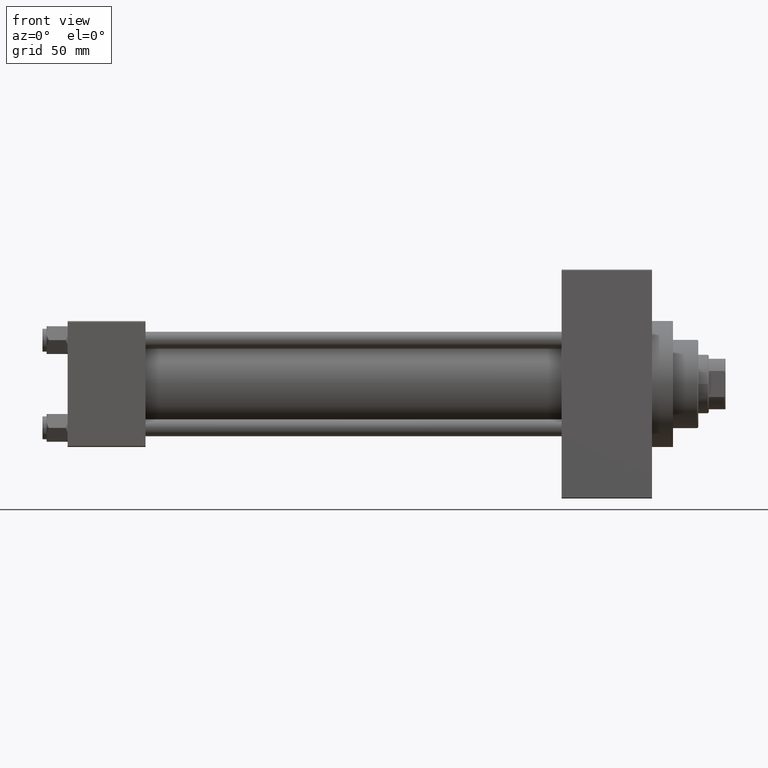
[diagram: clean part render]
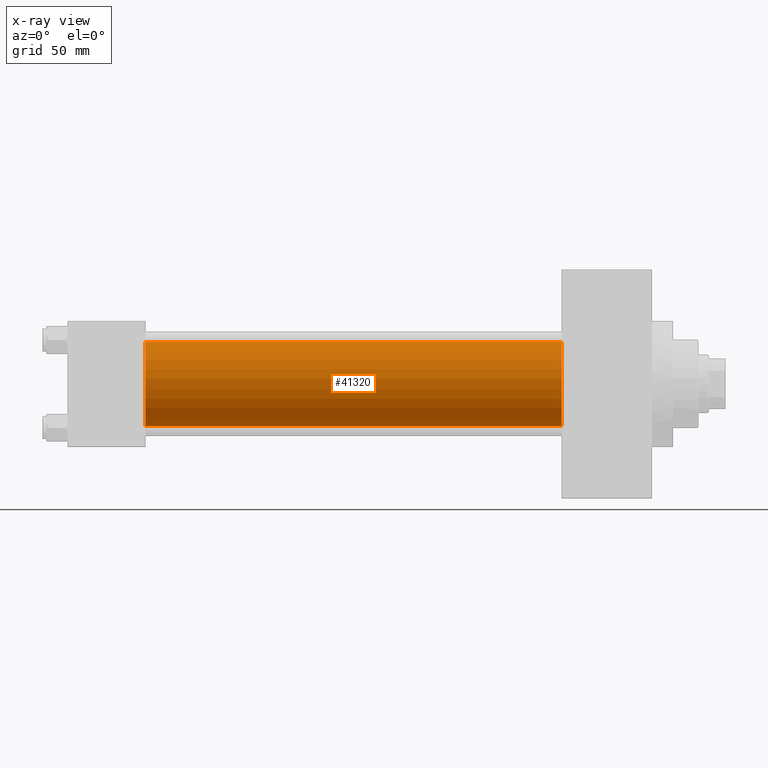
[diagram: x-ray — body ghosted, one internal face saturated and labeled with its STEP entity id]
A machine part, front view, then the same camera in x-ray: the body is ghosted and one INTERNAL B-rep face — a face not visible from any outside direction — is saturated and labeled: STEP entity #41320.
In plain terms, the highlighted cylindrical surface (partial cylindrical patch) has radius 20 mm, axis along (-1, -0, -0).
Its self-contained STEP definition (entity closure, byte-faithful):
#810 = CARTESIAN_POINT ( 'NONE',  ( 37.00000000000000000, -1.527916156705042519E-16, -20.00000000000000000 ) ) ;
#1242 = DIRECTION ( 'NONE',  ( -1.000000000000000000, -0.000000000000000000, -0.000000000000000000 ) ) ;
#1882 = ORIENTED_EDGE ( 'NONE', *, *, #24747, .T. ) ;
#2388 = CIRCLE ( 'NONE', #44594, 20.00000000000000000 ) ;
#4908 = VECTOR ( 'NONE', #40632, 1000.000000000000000 ) ;
#5596 = VERTEX_POINT ( 'NONE', #810 ) ;
#5745 = DIRECTION ( 'NONE',  ( -1.000000000000000000, -0.000000000000000000, -0.000000000000000000 ) ) ;
#7909 = EDGE_LOOP ( 'NONE', ( #25280, #1882, #47175, #36859 ) ) ;
#8864 = FACE_OUTER_BOUND ( 'NONE', #7909, .T. ) ;
#9421 = VERTEX_POINT ( 'NONE', #12591 ) ;
#9616 = DIRECTION ( 'NONE',  ( 0.000000000000000000, 0.000000000000000000, -1.000000000000000000 ) ) ;
#9626 = CARTESIAN_POINT ( 'NONE',  ( 235.0000000000000284, -2.602085213965210642E-15, 20.00000000000000000 ) ) ;
#12591 = CARTESIAN_POINT ( 'NONE',  ( 235.0000000000000284, -2.602085213965210642E-15, 20.00000000000000000 ) ) ;
#13839 = EDGE_CURVE ( 'NONE', #18016, #5596, #2388, .T. ) ;
#18016 = VERTEX_POINT ( 'NONE', #35241 ) ;
#18523 = LINE ( 'NONE', #22610, #4908 ) ;
#18857 = VECTOR ( 'NONE', #1242, 1000.000000000000000 ) ;
#20003 = EDGE_CURVE ( 'NONE', #9421, #21063, #42450, .T. ) ;
#21063 = VERTEX_POINT ( 'NONE', #44118 ) ;
#22610 = CARTESIAN_POINT ( 'NONE',  ( 235.0000000000000284, -1.527916156705042519E-16, -20.00000000000000000 ) ) ;
#22627 = AXIS2_PLACEMENT_3D ( 'NONE', #23531, #5745, #27380 ) ;
#23531 = CARTESIAN_POINT ( 'NONE',  ( 235.0000000000000284, -2.602085213965210642E-15, 0.000000000000000000 ) ) ;
#24747 = EDGE_CURVE ( 'NONE', #21063, #5596, #18523, .T. ) ;
#25280 = ORIENTED_EDGE ( 'NONE', *, *, #20003, .T. ) ;
#27380 = DIRECTION ( 'NONE',  ( 0.000000000000000000, 0.000000000000000000, 1.000000000000000000 ) ) ;
#27650 = CARTESIAN_POINT ( 'NONE',  ( 235.0000000000000284, -2.602085213965210642E-15, 0.000000000000000000 ) ) ;
#27876 = AXIS2_PLACEMENT_3D ( 'NONE', #27650, #38464, #9616 ) ;
#28768 = DIRECTION ( 'NONE',  ( 0.000000000000000000, 0.000000000000000000, -1.000000000000000000 ) ) ;
#30511 = CYLINDRICAL_SURFACE ( 'NONE', #22627, 20.00000000000000000 ) ;
#35241 = CARTESIAN_POINT ( 'NONE',  ( 37.00000000000000000, -2.602085213965210642E-15, 20.00000000000000000 ) ) ;
#36453 = CARTESIAN_POINT ( 'NONE',  ( 37.00000000000000000, -2.602085213965210642E-15, 0.000000000000000000 ) ) ;
#36859 = ORIENTED_EDGE ( 'NONE', *, *, #40137, .F. ) ;
#38464 = DIRECTION ( 'NONE',  ( 1.000000000000000000, 0.000000000000000000, 0.000000000000000000 ) ) ;
#40137 = EDGE_CURVE ( 'NONE', #9421, #18016, #42550, .T. ) ;
#40632 = DIRECTION ( 'NONE',  ( -1.000000000000000000, -0.000000000000000000, -0.000000000000000000 ) ) ;
#41320 = ADVANCED_FACE ( 'NONE', ( #8864 ), #30511, .F. ) ;
#42450 = CIRCLE ( 'NONE', #27876, 20.00000000000000000 ) ;
#42550 = LINE ( 'NONE', #9626, #18857 ) ;
#43423 = DIRECTION ( 'NONE',  ( 1.000000000000000000, 0.000000000000000000, 0.000000000000000000 ) ) ;
#44118 = CARTESIAN_POINT ( 'NONE',  ( 235.0000000000000284, -1.527916156705042519E-16, -20.00000000000000000 ) ) ;
#44594 = AXIS2_PLACEMENT_3D ( 'NONE', #36453, #43423, #28768 ) ;
#47175 = ORIENTED_EDGE ( 'NONE', *, *, #13839, .F. ) ;